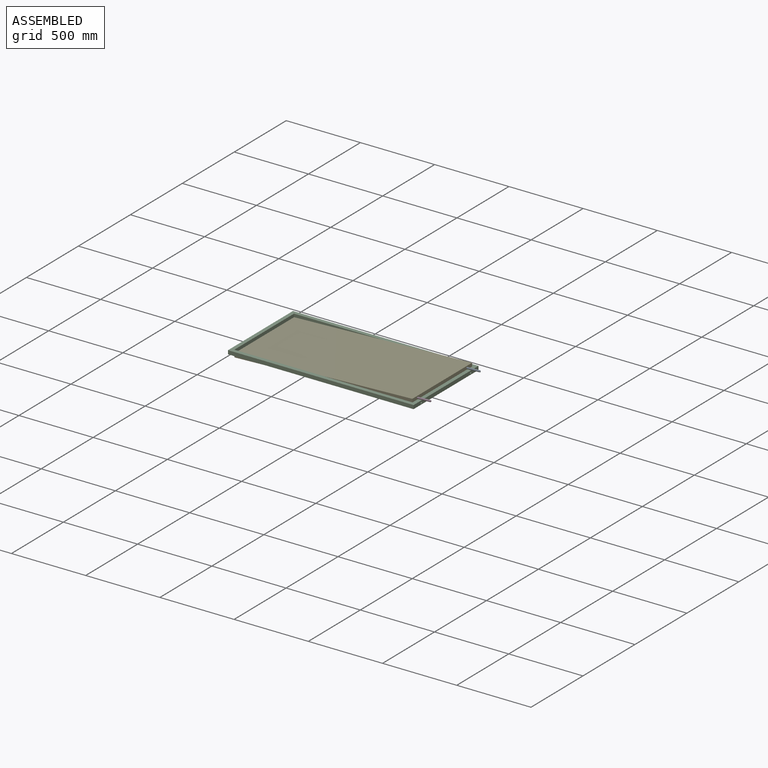
[diagram: assembled view]
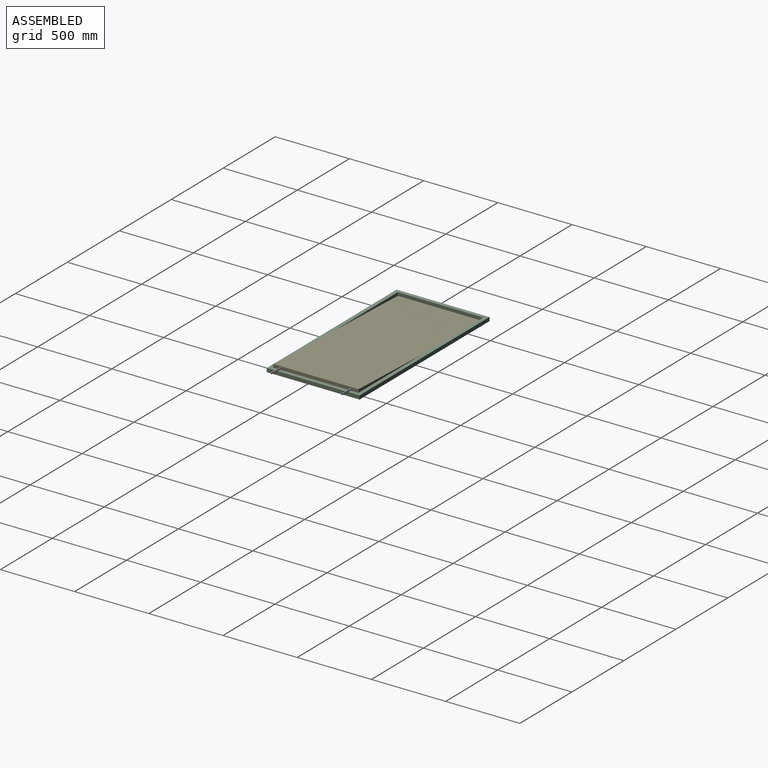
[diagram: assembled view, second angle]
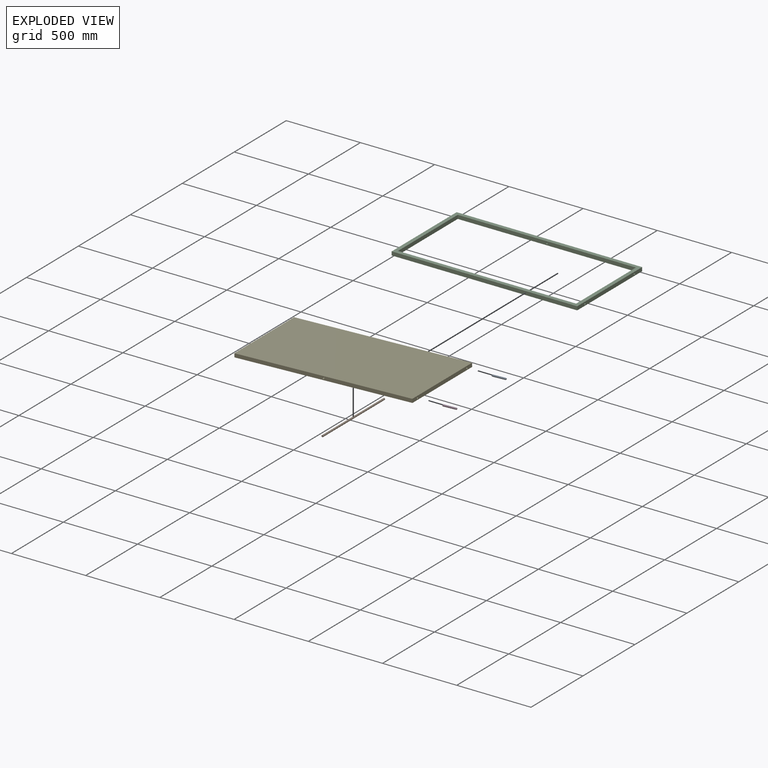
[diagram: exploded view]
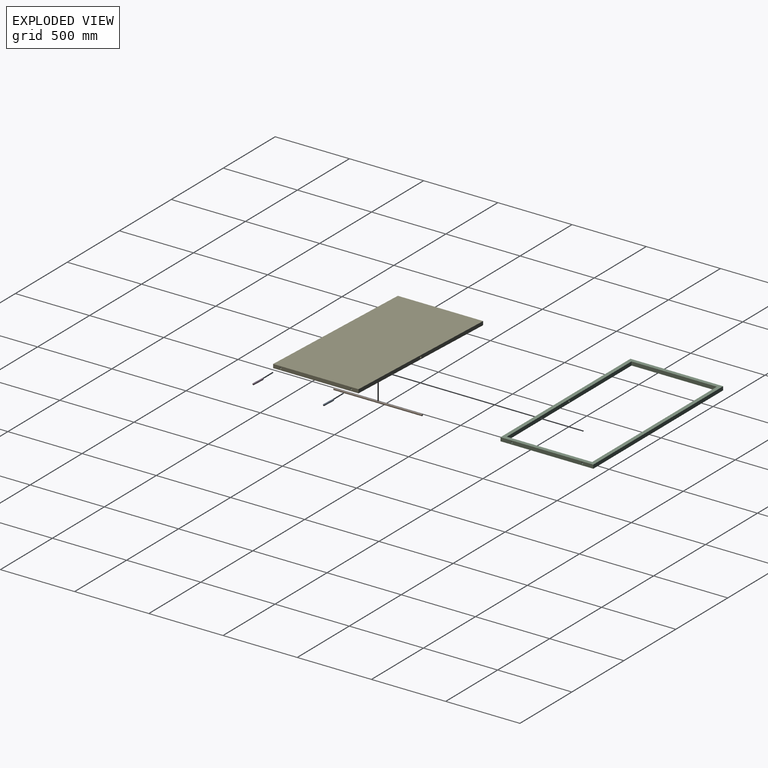
[diagram: exploded view, second angle]
ASSEMBLY  parts=5 mates=4
PART A: 4 faces, bbox 95x12x12 mm
  f0: cylinder r=6mm len=90mm, axis (1,0,0), area 3392.9mm2, adj f1,f3
  f1: plane 12x12mm, normal (-1,0,0), area 113.1mm2, adj f0
  f2: plane 2x2mm, normal (1,0,0), area 3.1mm2, adj f3
  f3: torus R=1mm, axis (1,0,0), area 206.4mm2, adj f0,f2
PART B: 3 faces, bbox 12x595x12 mm
  f0: cylinder r=6mm len=595mm, axis (0,-1,0), area 22431mm2, adj f1,f2
  f1: plane 12x12mm, normal (0,1,0), area 113.1mm2, adj f0
  f2: plane 12x12mm, normal (0,-1,0), area 113.1mm2, adj f0
PART C: 16 faces, bbox 1250x625x25 mm
  f0: plane 625x25mm, normal (1,0,0), area 15398.8mm2, adj f1,f7,f8,f9,f10,f11
  f1: plane 1250x25mm, normal (0,1,0), area 31250mm2, adj f0,f2,f8,f9
  f2: plane 625x25mm, normal (-1,0,0), area 15625mm2, adj f1,f7,f8,f9
  f3: plane 1200x25mm, normal (0,-1,0), area 29886.9mm2, adj f4,f6,f8,f9,f12
  f4: plane 575x25mm, normal (-1,0,0), area 14148.8mm2, adj f3,f5,f8,f9,f10,f11
  f5: plane 1200x25mm, normal (0,1,0), area 29886.9mm2, adj f4,f6,f8,f9,f14
  f6: plane 575x25mm, normal (1,0,0), area 14375mm2, adj f3,f5,f8,f9
  f7: plane 1250x25mm, normal (0,-1,0), area 31250mm2, adj f0,f2,f8,f9
  f8: plane 1250x625mm, normal (0,0,-1), area 91250mm2, adj f0,f1,f2,f3,f4,f5,f6,f7
  f9: plane 1250x625mm, normal (0,0,1), area 91250mm2, adj f0,f1,f2,f3,f4,f5,f6,f7
  f10: cylinder r=6mm len=25mm, axis (1,0,0), area 942.5mm2, adj f0,f4
  f11: cylinder r=6mm len=25mm, axis (1,0,0), area 942.5mm2, adj f0,f4
  f12: cylinder r=6mm len=12mm, axis (0,-1,0), area 377mm2, adj f3,f13
  f13: plane 12x12mm, normal (0,-1,0), area 113.1mm2, adj f12
  f14: cylinder r=6mm len=12mm, axis (0,1,0), area 377mm2, adj f5,f15
  f15: plane 12x12mm, normal (0,1,0), area 113.1mm2, adj f14
PART D: 4 faces, bbox 95x12x12 mm
  f0: cylinder r=6mm len=90mm, axis (1,0,0), area 3392.9mm2, adj f1,f3
  f1: plane 12x12mm, normal (-1,0,0), area 113.1mm2, adj f0
  f2: plane 2x2mm, normal (1,0,0), area 3.1mm2, adj f3
  f3: torus R=1mm, axis (1,0,0), area 206.4mm2, adj f0,f2
PART E: 11 faces, bbox 1200x575x25 mm
  f0: plane 575x25mm, normal (1,0,0), area 14148.8mm2, adj f1,f3,f4,f5,f7,f9
  f1: plane 1200x575mm, normal (0,0,1), area 690000mm2, adj f0,f2,f4,f5
  f2: plane 575x25mm, normal (-1,0,0), area 14375mm2, adj f1,f3,f4,f5
  f3: plane 1200x575mm, normal (0,0,-1), area 690000mm2, adj f0,f2,f4,f5
  f4: plane 1200x25mm, normal (0,-1,0), area 29886.9mm2, adj f0,f1,f2,f3,f6
  f5: plane 1200x25mm, normal (0,1,0), area 29886.9mm2, adj f0,f1,f2,f3,f6
  f6: cylinder r=6mm len=575mm, axis (0,-1,0), area 21677mm2, adj f4,f5
  f7: cylinder r=6mm len=50mm, axis (1,0,0), area 1885mm2, adj f0,f8
  f8: plane 12x12mm, normal (1,0,0), area 113.1mm2, adj f7
  f9: cylinder r=6mm len=50mm, axis (1,0,0), area 1885mm2, adj f0,f10
  f10: plane 12x12mm, normal (1,0,0), area 113.1mm2, adj f9
PLACE A rot(axis=(0,-1,0),2.1deg) t=(107.29,-12.77,-334.45)mm
PLACE B rot(axis=(0,-1,0),2.1deg) t=(61.35,-12.77,-336.1)mm
PLACE C t=(61.35,-12.77,-336.1)mm
PLACE D rot(axis=(0,-1,0),2.1deg) t=(107.29,-12.77,-334.45)mm
PLACE E rot(axis=(0,-1,0),2.1deg) t=(61.35,-12.77,-336.1)mm
MATE slider A.f0 <-> E.f7  axis (-1,0,-0.04) through (656.93,224.73,-314.69)mm
MATE slider E.f6 <-> B.f0  axis (0,-1,0) through (61.35,-300.27,-336.1)mm
MATE cylindrical C.f12 <-> B.f0  axis (0,-1,0) through (61.35,284.73,-336.1)mm
MATE slider D.f0 <-> E.f9  axis (-1,0,-0.04) through (656.93,-250.27,-314.69)mm
